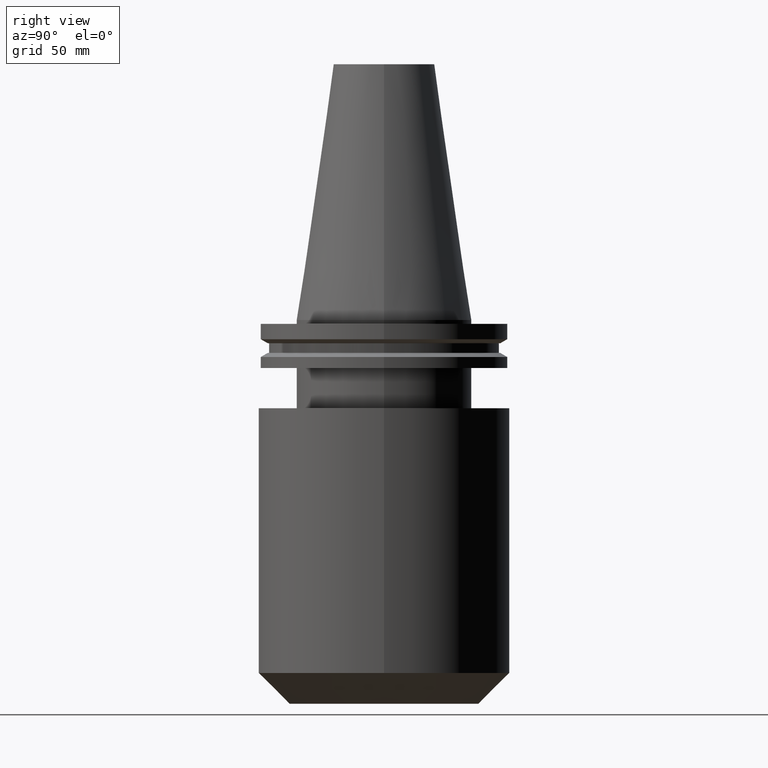
[diagram: clean part render]
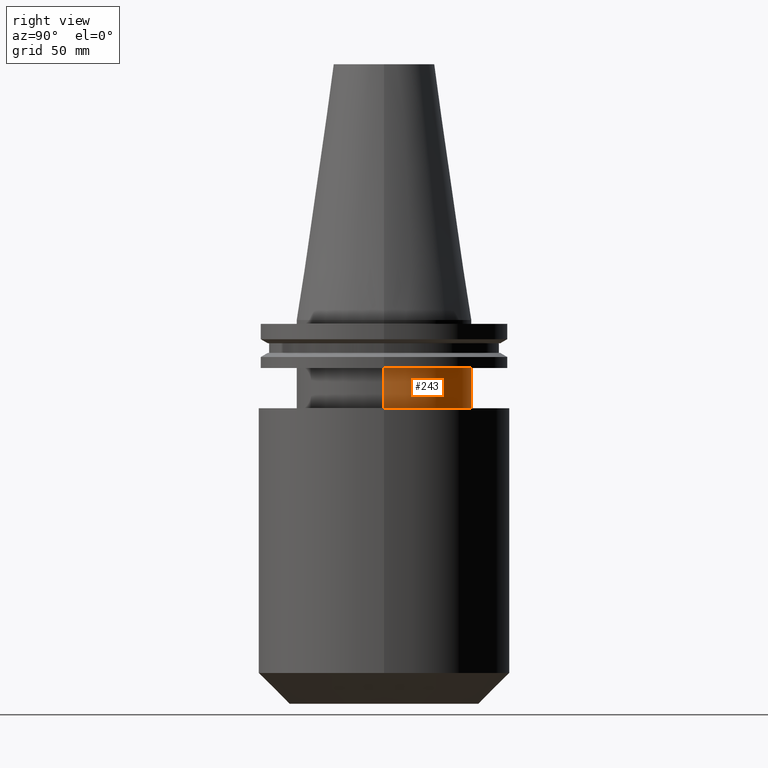
[diagram: same view with one face highlighted and labeled with its STEP entity id]
A machine part, right view. The second image highlights one B-rep face of the part: STEP entity #243.
In plain terms, the highlighted cylindrical surface (partial cylindrical patch) has radius 34.925 mm, axis along (-0, -0, 1).
Its self-contained STEP definition (entity closure, byte-faithful):
#18 = VERTEX_POINT ( 'NONE', #847 ) ;
#44 = DIRECTION ( 'NONE',  ( 0.000000000000000000, 0.000000000000000000, -1.000000000000000000 ) ) ;
#100 = EDGE_CURVE ( 'NONE', #18, #418, #173, .T. ) ;
#122 = CARTESIAN_POINT ( 'NONE',  ( -34.92499999999999716, 4.277078946022130887E-15, 101.5999999999999943 ) ) ;
#137 = AXIS2_PLACEMENT_3D ( 'NONE', #436, #44, #706 ) ;
#138 = CARTESIAN_POINT ( 'NONE',  ( 34.92499999999999716, 0.000000000000000000, -35.04999999999999716 ) ) ;
#173 = CIRCLE ( 'NONE', #819, 34.92499999999999716 ) ;
#180 = DIRECTION ( 'NONE',  ( 1.000000000000000000, 0.000000000000000000, 0.000000000000000000 ) ) ;
#198 = DIRECTION ( 'NONE',  ( 1.000000000000000000, 0.000000000000000000, 0.000000000000000000 ) ) ;
#201 = CARTESIAN_POINT ( 'NONE',  ( -34.92499999999999716, 4.277078946022130887E-15, -19.04999999999999716 ) ) ;
#213 = VERTEX_POINT ( 'NONE', #138 ) ;
#221 = ORIENTED_EDGE ( 'NONE', *, *, #755, .F. ) ;
#243 = ADVANCED_FACE ( 'NONE', ( #767 ), #248, .T. ) ;
#248 = CYLINDRICAL_SURFACE ( 'NONE', #577, 34.92499999999999716 ) ;
#260 = VERTEX_POINT ( 'NONE', #576 ) ;
#283 = VECTOR ( 'NONE', #832, 1000.000000000000000 ) ;
#296 = EDGE_LOOP ( 'NONE', ( #221, #628, #795, #353 ) ) ;
#353 = ORIENTED_EDGE ( 'NONE', *, *, #798, .F. ) ;
#371 = CARTESIAN_POINT ( 'NONE',  ( 34.92499999999999716, 0.000000000000000000, 101.5999999999999943 ) ) ;
#379 = DIRECTION ( 'NONE',  ( -0.000000000000000000, -0.000000000000000000, 1.000000000000000000 ) ) ;
#418 = VERTEX_POINT ( 'NONE', #201 ) ;
#436 = CARTESIAN_POINT ( 'NONE',  ( 0.000000000000000000, 0.000000000000000000, -35.04999999999999716 ) ) ;
#466 = VECTOR ( 'NONE', #637, 1000.000000000000000 ) ;
#576 = CARTESIAN_POINT ( 'NONE',  ( -34.92499999999999716, 4.277078946022130887E-15, -35.04999999999999716 ) ) ;
#577 = AXIS2_PLACEMENT_3D ( 'NONE', #839, #379, #180 ) ;
#626 = CIRCLE ( 'NONE', #137, 34.92499999999999716 ) ;
#628 = ORIENTED_EDGE ( 'NONE', *, *, #812, .T. ) ;
#637 = DIRECTION ( 'NONE',  ( -0.000000000000000000, -0.000000000000000000, 1.000000000000000000 ) ) ;
#703 = LINE ( 'NONE', #371, #466 ) ;
#706 = DIRECTION ( 'NONE',  ( -1.000000000000000000, 0.000000000000000000, 0.000000000000000000 ) ) ;
#731 = DIRECTION ( 'NONE',  ( -0.000000000000000000, -0.000000000000000000, 1.000000000000000000 ) ) ;
#755 = EDGE_CURVE ( 'NONE', #260, #213, #626, .T. ) ;
#767 = FACE_OUTER_BOUND ( 'NONE', #296, .T. ) ;
#769 = CARTESIAN_POINT ( 'NONE',  ( 0.000000000000000000, 0.000000000000000000, -19.04999999999999716 ) ) ;
#795 = ORIENTED_EDGE ( 'NONE', *, *, #100, .F. ) ;
#798 = EDGE_CURVE ( 'NONE', #213, #18, #703, .T. ) ;
#812 = EDGE_CURVE ( 'NONE', #260, #418, #841, .T. ) ;
#819 = AXIS2_PLACEMENT_3D ( 'NONE', #769, #731, #198 ) ;
#832 = DIRECTION ( 'NONE',  ( -0.000000000000000000, -0.000000000000000000, 1.000000000000000000 ) ) ;
#839 = CARTESIAN_POINT ( 'NONE',  ( 0.000000000000000000, 0.000000000000000000, 101.5999999999999943 ) ) ;
#841 = LINE ( 'NONE', #122, #283 ) ;
#847 = CARTESIAN_POINT ( 'NONE',  ( 34.92499999999999716, 0.000000000000000000, -19.04999999999999716 ) ) ;